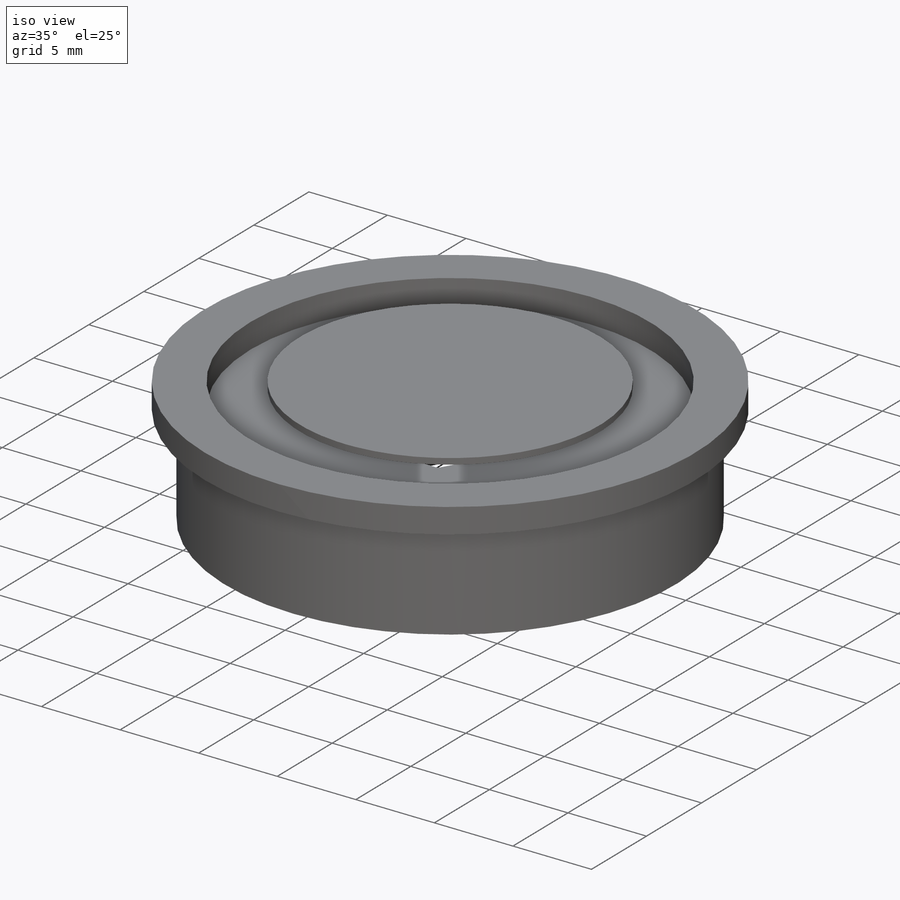
[diagram: iso view]
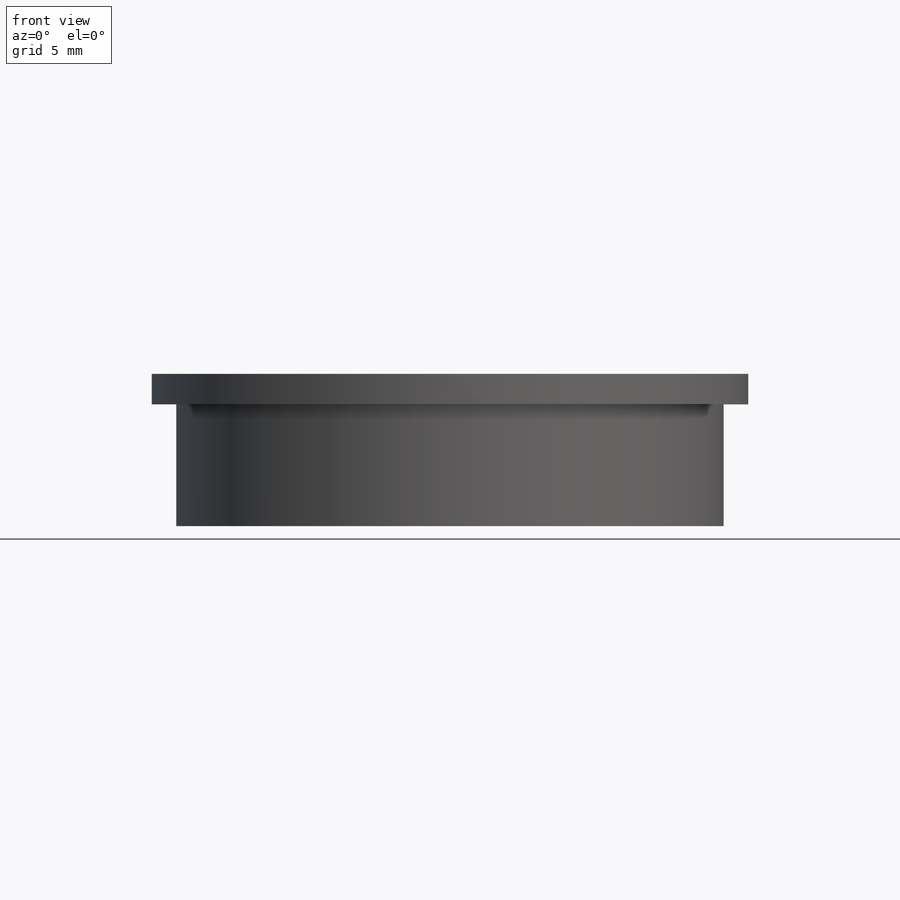
[diagram: front view]
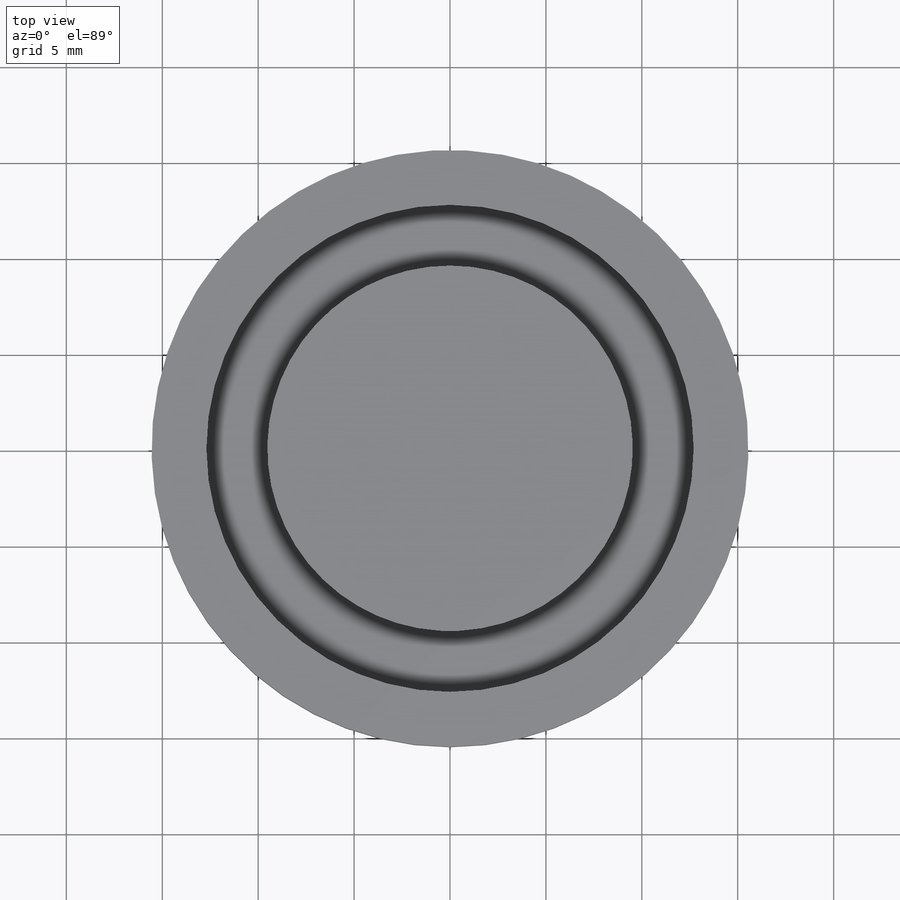
[diagram: top view]
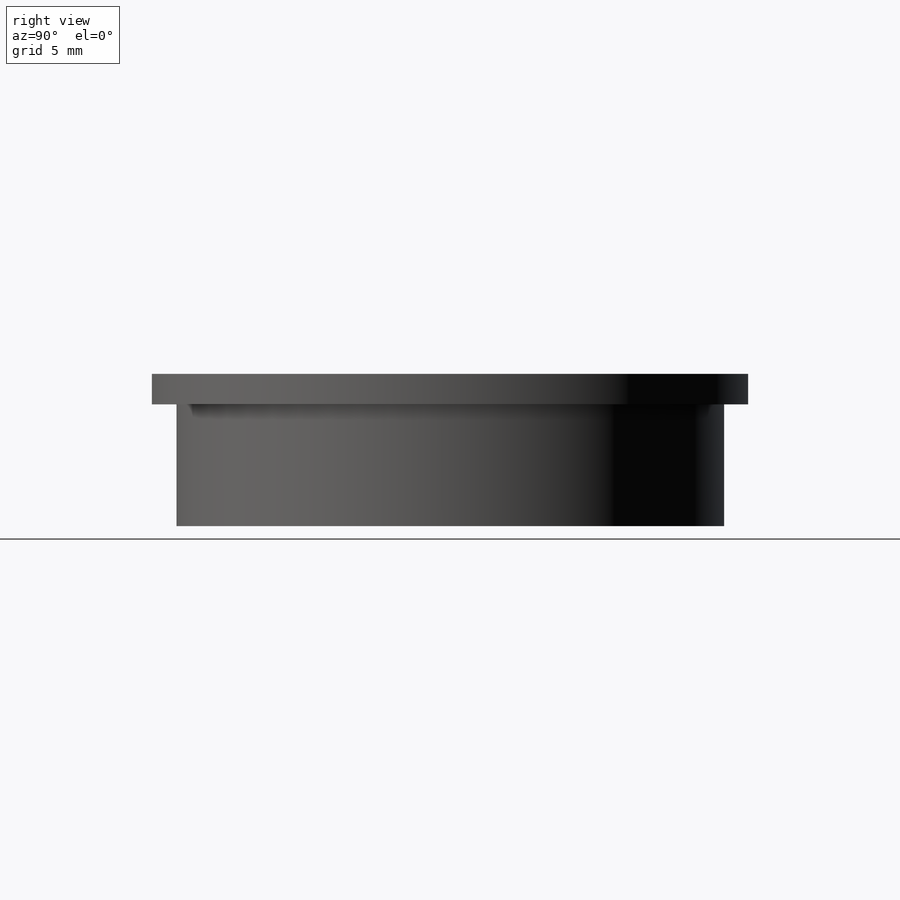
[diagram: right view]
SOLIDWORKS PART (.sldprt)
format: sldprt  version: not decoded by parser v0  size: 195,072 bytes
history: native  units: mm
features: sketch x6, plane x2, extrude x2, material x1, revolve x1, hole x1, cut_extrude x1 (+12 scaffold rows collapsed)
feature tree (26):
  scaffold x12  (default folders/planes/origin — collapsed)
  material  "Material <not specified>"
  plane  "Plane1"
  sketch  "Sketch1"
  revolve  "Revolve1"  Angle=360deg
  hole  "M22 Clearance Hole1"  Diameter=25.4mm Depth=1.5875mm
  sketch  "Sketch3"
  sketch  "Sketch2"  dims[hole-wizard template sketch: 60 standard entries collapsed; hole parameters kept: c18.Thru Hole Depth=1.5875mm]
  plane  "Plane2"
  sketch  "Sketch4"
  extrude  "Boss-Extrude1"  Depth=0.381mm
  sketch  "Sketch5"
  extrude  "Boss-Extrude2"  Depth=6.35mm
  sketch  "Sketch6"
  cut_extrude  "Cut-Extrude1"  Depth=7.9375mm
decode coverage: 6 of 11 modeling features carry decoded parameters
note: ~ marks probable driven/reference dimensions
note: suppression state not decoded; provenance and decode notes live in map.json
